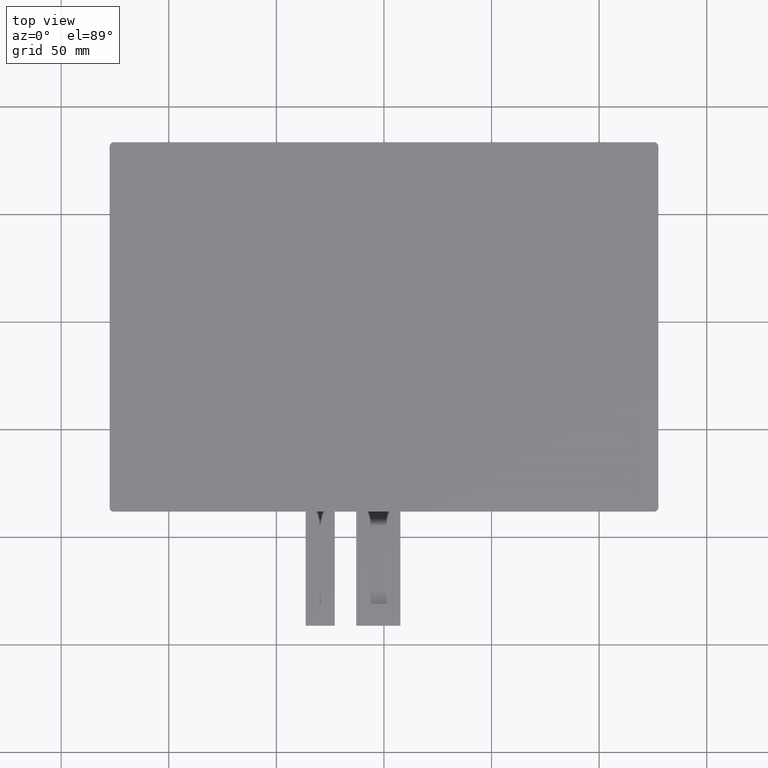
[diagram: clean part render]
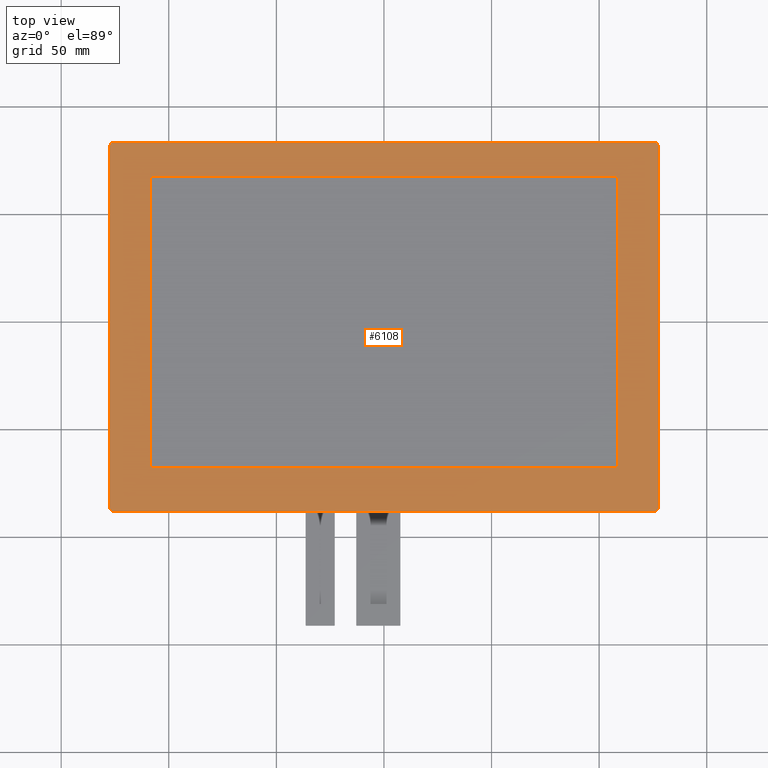
[diagram: same view with one face highlighted and labeled with its STEP entity id]
A machine part, top view. The second image highlights one B-rep face of the part: STEP entity #6108.
In plain terms, the highlighted planar face has unit normal (0, 0, 1).
Its self-contained STEP definition (entity closure, byte-faithful):
#50=FACE_BOUND('',#363,.T.);
#54=FACE_OUTER_BOUND('',#362,.T.);
#362=EDGE_LOOP('',(#3974,#3975,#3976,#3977,#3978,#3979,#3980,#3981));
#363=EDGE_LOOP('',(#3982,#3983,#3984,#3985));
#674=LINE('',#8306,#1562);
#675=LINE('',#8310,#1563);
#676=LINE('',#8314,#1564);
#677=LINE('',#8317,#1565);
#678=LINE('',#8320,#1566);
#679=LINE('',#8322,#1567);
#680=LINE('',#8324,#1568);
#681=LINE('',#8325,#1569);
#1562=VECTOR('',#6768,10.);
#1563=VECTOR('',#6771,10.);
#1564=VECTOR('',#6774,10.);
#1565=VECTOR('',#6777,10.);
#1566=VECTOR('',#6778,10.);
#1567=VECTOR('',#6779,10.);
#1568=VECTOR('',#6780,10.);
#1569=VECTOR('',#6781,10.);
#2450=CIRCLE('',#6439,2.);
#2451=CIRCLE('',#6440,2.);
#2452=CIRCLE('',#6441,2.);
#2453=CIRCLE('',#6442,2.);
#2466=VERTEX_POINT('',#8302);
#2467=VERTEX_POINT('',#8303);
#2468=VERTEX_POINT('',#8305);
#2469=VERTEX_POINT('',#8307);
#2470=VERTEX_POINT('',#8309);
#2471=VERTEX_POINT('',#8311);
#2472=VERTEX_POINT('',#8313);
#2473=VERTEX_POINT('',#8315);
#2474=VERTEX_POINT('',#8318);
#2475=VERTEX_POINT('',#8319);
#2476=VERTEX_POINT('',#8321);
#2477=VERTEX_POINT('',#8323);
#3070=EDGE_CURVE('',#2466,#2467,#2450,.T.);
#3071=EDGE_CURVE('',#2466,#2468,#674,.T.);
#3072=EDGE_CURVE('',#2469,#2468,#2451,.T.);
#3073=EDGE_CURVE('',#2469,#2470,#675,.T.);
#3074=EDGE_CURVE('',#2471,#2470,#2452,.T.);
#3075=EDGE_CURVE('',#2471,#2472,#676,.T.);
#3076=EDGE_CURVE('',#2473,#2472,#2453,.T.);
#3077=EDGE_CURVE('',#2473,#2467,#677,.T.);
#3078=EDGE_CURVE('',#2474,#2475,#678,.T.);
#3079=EDGE_CURVE('',#2476,#2474,#679,.T.);
#3080=EDGE_CURVE('',#2477,#2476,#680,.T.);
#3081=EDGE_CURVE('',#2475,#2477,#681,.T.);
#3974=ORIENTED_EDGE('',*,*,#3070,.F.);
#3975=ORIENTED_EDGE('',*,*,#3071,.T.);
#3976=ORIENTED_EDGE('',*,*,#3072,.F.);
#3977=ORIENTED_EDGE('',*,*,#3073,.T.);
#3978=ORIENTED_EDGE('',*,*,#3074,.F.);
#3979=ORIENTED_EDGE('',*,*,#3075,.T.);
#3980=ORIENTED_EDGE('',*,*,#3076,.F.);
#3981=ORIENTED_EDGE('',*,*,#3077,.T.);
#3982=ORIENTED_EDGE('',*,*,#3078,.F.);
#3983=ORIENTED_EDGE('',*,*,#3079,.F.);
#3984=ORIENTED_EDGE('',*,*,#3080,.F.);
#3985=ORIENTED_EDGE('',*,*,#3081,.F.);
#5782=PLANE('',#6438);
#6108=ADVANCED_FACE('',(#54,#50),#5782,.T.);
#6438=AXIS2_PLACEMENT_3D('',#8301,#6764,#6765);
#6439=AXIS2_PLACEMENT_3D('',#8304,#6766,#6767);
#6440=AXIS2_PLACEMENT_3D('',#8308,#6769,#6770);
#6441=AXIS2_PLACEMENT_3D('',#8312,#6772,#6773);
#6442=AXIS2_PLACEMENT_3D('',#8316,#6775,#6776);
#6764=DIRECTION('center_axis',(0.,0.,1.));
#6765=DIRECTION('ref_axis',(1.,0.,0.));
#6766=DIRECTION('center_axis',(0.,0.,-1.));
#6767=DIRECTION('ref_axis',(0.707106781186548,0.707106781186548,0.));
#6768=DIRECTION('',(-1.,0.,0.));
#6769=DIRECTION('center_axis',(0.,0.,-1.));
#6770=DIRECTION('ref_axis',(-0.707106781186548,0.707106781186548,0.));
#6771=DIRECTION('',(2.06914017402475E-16,-1.,0.));
#6772=DIRECTION('center_axis',(0.,0.,-1.));
#6773=DIRECTION('ref_axis',(-0.707106781186548,-0.707106781186548,0.));
#6774=DIRECTION('',(1.,2.089831575765E-16,0.));
#6775=DIRECTION('center_axis',(0.,0.,-1.));
#6776=DIRECTION('ref_axis',(0.707106781186554,-0.707106781186541,0.));
#6777=DIRECTION('',(-1.03457008701238E-16,1.,0.));
#6778=DIRECTION('',(0.,1.,0.));
#6779=DIRECTION('',(1.,0.,0.));
#6780=DIRECTION('',(0.,-1.,0.));
#6781=DIRECTION('',(-1.,0.,0.));
#8301=CARTESIAN_POINT('Origin',(0.0199999999999712,-2.34999999999998,1.1));
#8302=CARTESIAN_POINT('',(125.52,83.5,1.1));
#8303=CARTESIAN_POINT('',(127.52,81.5,1.1));
#8304=CARTESIAN_POINT('Origin',(125.52,81.5,1.1));
#8305=CARTESIAN_POINT('',(-125.48,83.5,1.1));
#8306=CARTESIAN_POINT('',(127.52,83.5,1.1));
#8307=CARTESIAN_POINT('',(-127.48,81.5,1.1));
#8308=CARTESIAN_POINT('Origin',(-125.48,81.5,1.1));
#8309=CARTESIAN_POINT('',(-127.48,-86.2,1.1));
#8310=CARTESIAN_POINT('',(-127.48,83.5,1.1));
#8311=CARTESIAN_POINT('',(-125.48,-88.2,1.1));
#8312=CARTESIAN_POINT('Origin',(-125.48,-86.2,1.1));
#8313=CARTESIAN_POINT('',(125.52,-88.1999999999999,1.1));
#8314=CARTESIAN_POINT('',(-127.48,-88.2,1.1));
#8315=CARTESIAN_POINT('',(127.52,-86.2,1.1));
#8316=CARTESIAN_POINT('Origin',(125.52,-86.2,1.1));
#8317=CARTESIAN_POINT('',(127.52,-88.1999999999999,1.1));
#8318=CARTESIAN_POINT('',(108.48,-67.8,1.1));
#8319=CARTESIAN_POINT('',(108.48,67.8,1.1));
#8320=CARTESIAN_POINT('',(108.48,-35.075,1.1));
#8321=CARTESIAN_POINT('',(-108.48,-67.8,1.1));
#8322=CARTESIAN_POINT('',(-54.23,-67.8,1.1));
#8323=CARTESIAN_POINT('',(-108.48,67.8,1.1));
#8324=CARTESIAN_POINT('',(-108.48,32.725,1.1));
#8325=CARTESIAN_POINT('',(54.25,67.8,1.1));